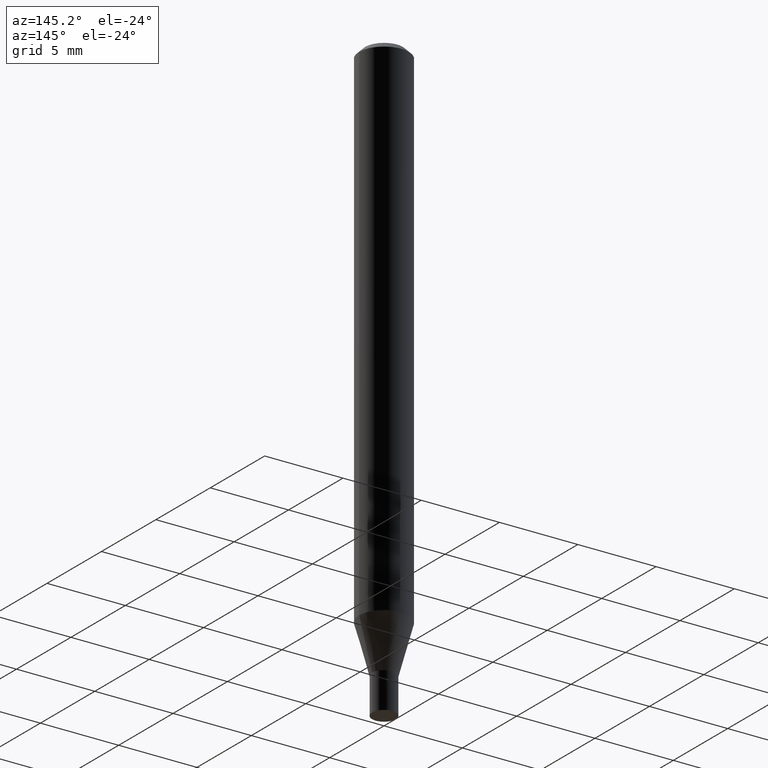
[diagram: clean part render]
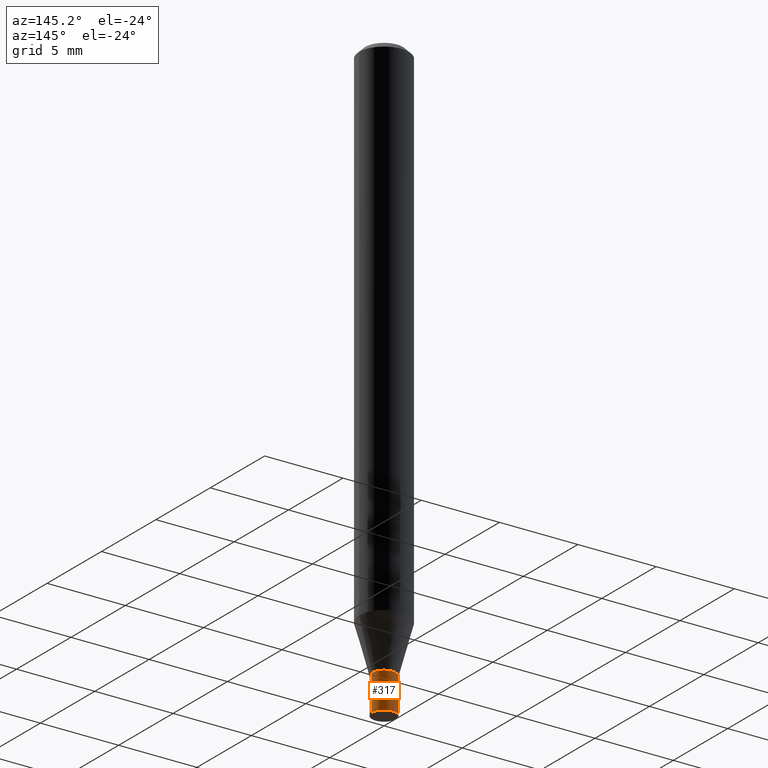
[diagram: same view with one face highlighted and labeled with its STEP entity id]
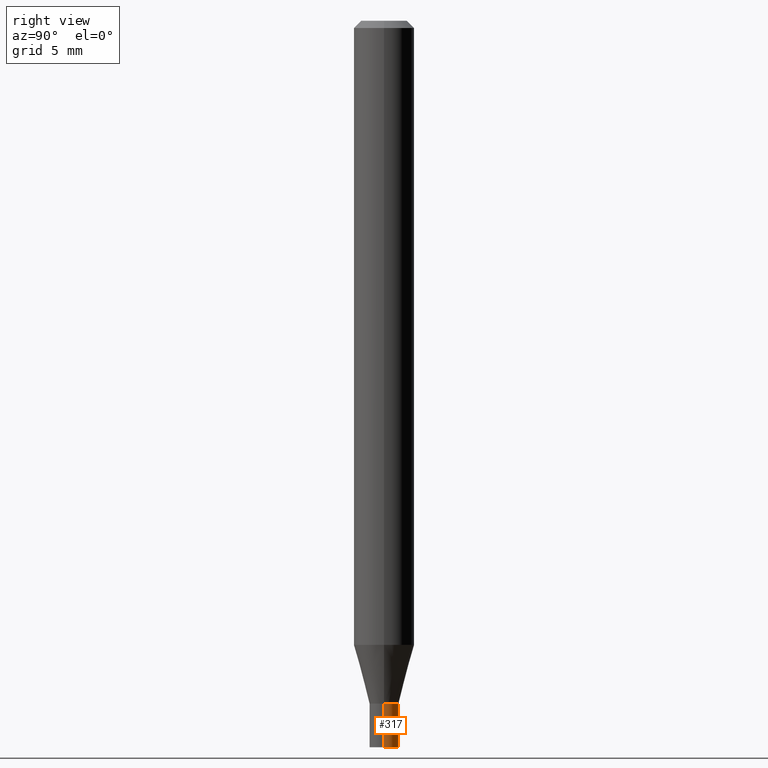
[diagram: same view with one face highlighted and labeled with its STEP entity id]
A machine part, auxiliary view. The second image highlights one B-rep face of the part: STEP entity #317.
A second angle (right view) of the same face is appended — the face is thin or edge-on in the first view.
In plain terms, the highlighted cylindrical surface (edge-blend (fillet) strip) has radius 0.762 mm, axis along (-0, 0, 1).
Its self-contained STEP definition (entity closure, byte-faithful):
#32 = CARTESIAN_POINT ( 'NONE',  ( -0.02999999999999999889, -4.866942527288747877E-15, -1.500000000000000222 ) ) ;
#58 = ORIENTED_EDGE ( 'NONE', *, *, #358, .T. ) ;
#62 = VERTEX_POINT ( 'NONE', #423 ) ;
#69 = CARTESIAN_POINT ( 'NONE',  ( 0.02999999999999999889, -5.132477568099424807E-15, -1.410000000000000364 ) ) ;
#77 = DIRECTION ( 'NONE',  ( -2.445468806185136597E-29, 3.491481338843145583E-15, 1.000000000000000000 ) ) ;
#83 = CARTESIAN_POINT ( 'NONE',  ( 0.02999999999999999889, -5.446710888595306494E-15, -1.500000000000000222 ) ) ;
#85 = AXIS2_PLACEMENT_3D ( 'NONE', #407, #77, #218 ) ;
#86 = DIRECTION ( 'NONE',  ( -2.445468806185136877E-29, 3.491481338843145188E-15, 1.000000000000000000 ) ) ;
#130 = CARTESIAN_POINT ( 'NONE',  ( -0.02999999999999999889, 2.131628207280300479E-16, -1.475680527076471707E-30 ) ) ;
#132 = AXIS2_PLACEMENT_3D ( 'NONE', #408, #251, #136 ) ;
#136 = DIRECTION ( 'NONE',  ( 1.000000000000000000, -6.982962677686268288E-15, 0.000000000000000000 ) ) ;
#149 = ORIENTED_EDGE ( 'NONE', *, *, #190, .F. ) ;
#162 = DIRECTION ( 'NONE',  ( -2.445468806185136877E-29, 3.491481338843145188E-15, 1.000000000000000000 ) ) ;
#171 = VECTOR ( 'NONE', #86, 39.37007874015748143 ) ;
#178 = CIRCLE ( 'NONE', #359, 0.02999999999999999889 ) ;
#190 = EDGE_CURVE ( 'NONE', #219, #62, #370, .T. ) ;
#193 = DIRECTION ( 'NONE',  ( -2.445468806185136597E-29, 3.491481338843145583E-15, 1.000000000000000000 ) ) ;
#213 = CYLINDRICAL_SURFACE ( 'NONE', #85, 0.02999999999999999889 ) ;
#216 = VERTEX_POINT ( 'NONE', #32 ) ;
#218 = DIRECTION ( 'NONE',  ( 1.000000000000000000, -6.982962677686267499E-15, 4.876176775795936353E-29 ) ) ;
#219 = VERTEX_POINT ( 'NONE', #69 ) ;
#222 = ORIENTED_EDGE ( 'NONE', *, *, #443, .T. ) ;
#251 = DIRECTION ( 'NONE',  ( -2.445468806185136597E-29, 3.491481338843145583E-15, 1.000000000000000000 ) ) ;
#295 = FACE_OUTER_BOUND ( 'NONE', #343, .T. ) ;
#298 = CARTESIAN_POINT ( 'NONE',  ( 0.02999999999999999889, -2.094888803305880210E-16, 1.462853032738780878E-30 ) ) ;
#303 = VERTEX_POINT ( 'NONE', #83 ) ;
#306 = LINE ( 'NONE', #130, #405 ) ;
#317 = ADVANCED_FACE ( 'NONE', ( #295 ), #213, .T. ) ;
#343 = EDGE_LOOP ( 'NONE', ( #222, #58, #149, #401 ) ) ;
#344 = DIRECTION ( 'NONE',  ( 1.000000000000000000, -6.982962677686268288E-15, 0.000000000000000000 ) ) ;
#358 = EDGE_CURVE ( 'NONE', #216, #62, #306, .T. ) ;
#359 = AXIS2_PLACEMENT_3D ( 'NONE', #445, #193, #344 ) ;
#370 = CIRCLE ( 'NONE', #132, 0.02999999999999999889 ) ;
#401 = ORIENTED_EDGE ( 'NONE', *, *, #403, .F. ) ;
#403 = EDGE_CURVE ( 'NONE', #303, #219, #458, .T. ) ;
#405 = VECTOR ( 'NONE', #162, 39.37007874015748143 ) ;
#407 = CARTESIAN_POINT ( 'NONE',  ( 0.000000000000000000, 0.000000000000000000, 0.000000000000000000 ) ) ;
#408 = CARTESIAN_POINT ( 'NONE',  ( 3.448111016721043229E-29, -4.922988687768836490E-15, -1.410000000000000364 ) ) ;
#423 = CARTESIAN_POINT ( 'NONE',  ( -0.02999999999999999889, -4.866942527288747877E-15, -1.410000000000000364 ) ) ;
#443 = EDGE_CURVE ( 'NONE', #303, #216, #178, .T. ) ;
#445 = CARTESIAN_POINT ( 'NONE',  ( 3.668203209277704895E-29, -5.237222008264718177E-15, -1.500000000000000222 ) ) ;
#458 = LINE ( 'NONE', #298, #171 ) ;